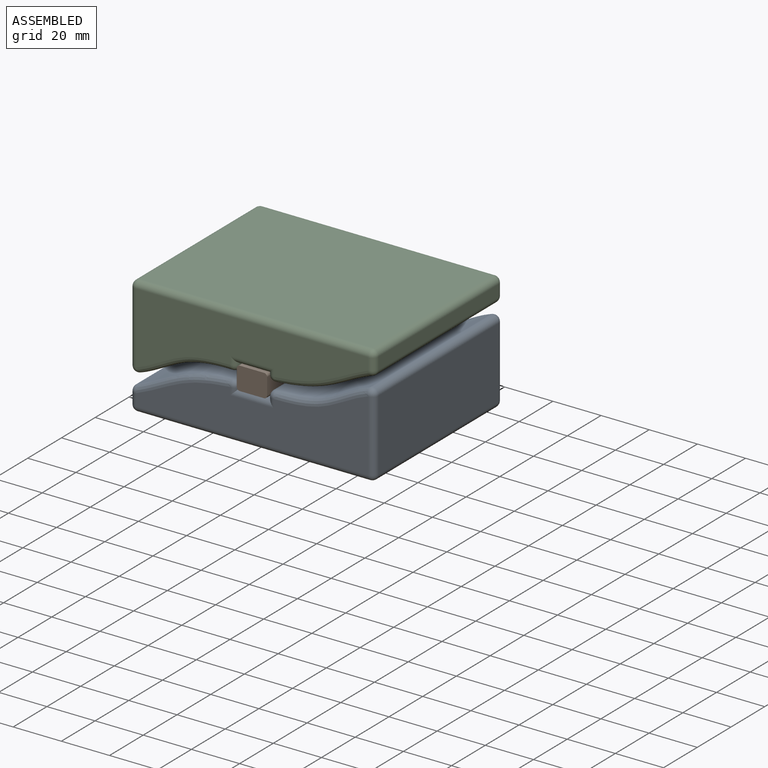
[diagram: assembled view]
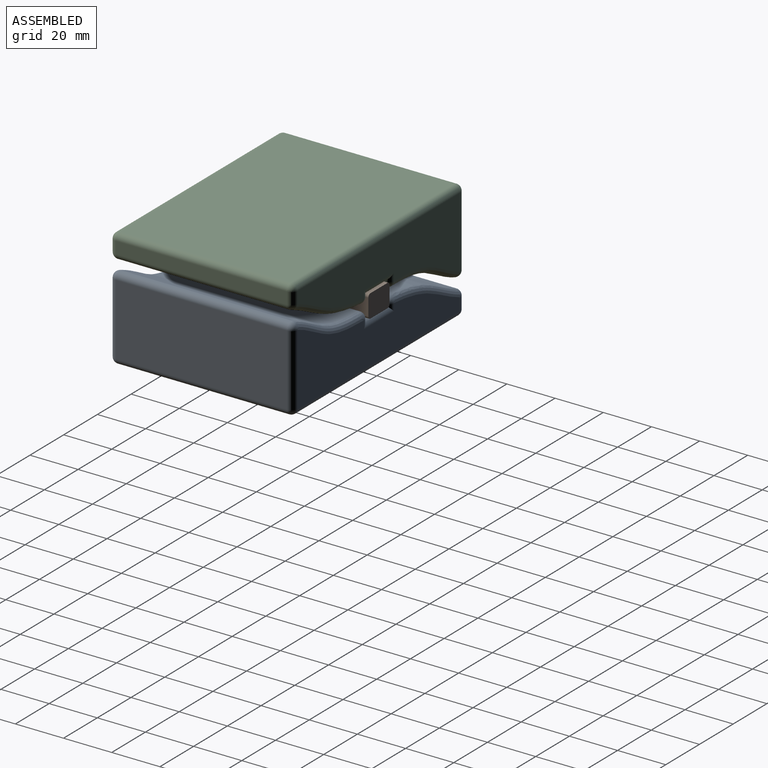
[diagram: assembled view, second angle]
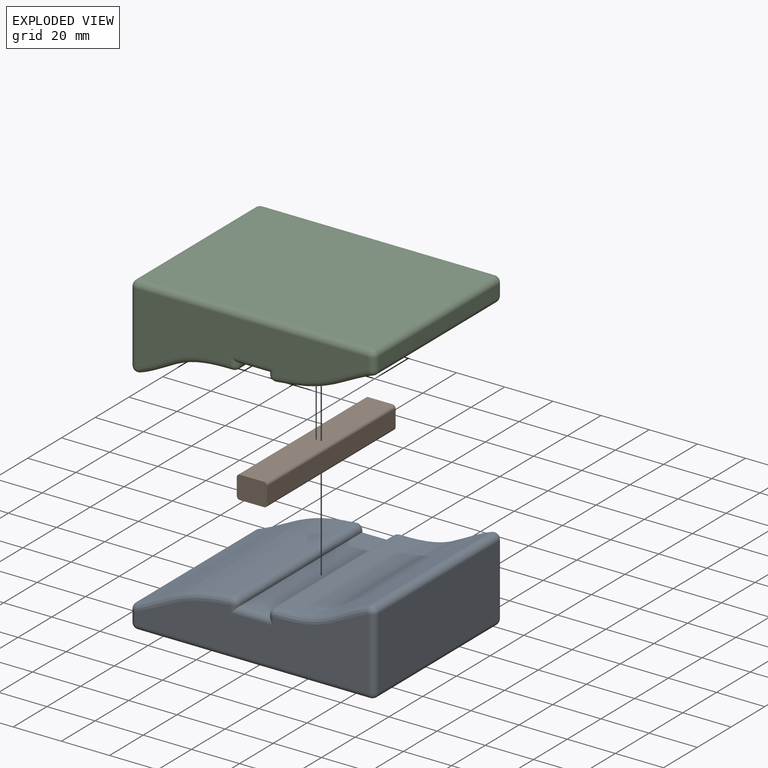
[diagram: exploded view]
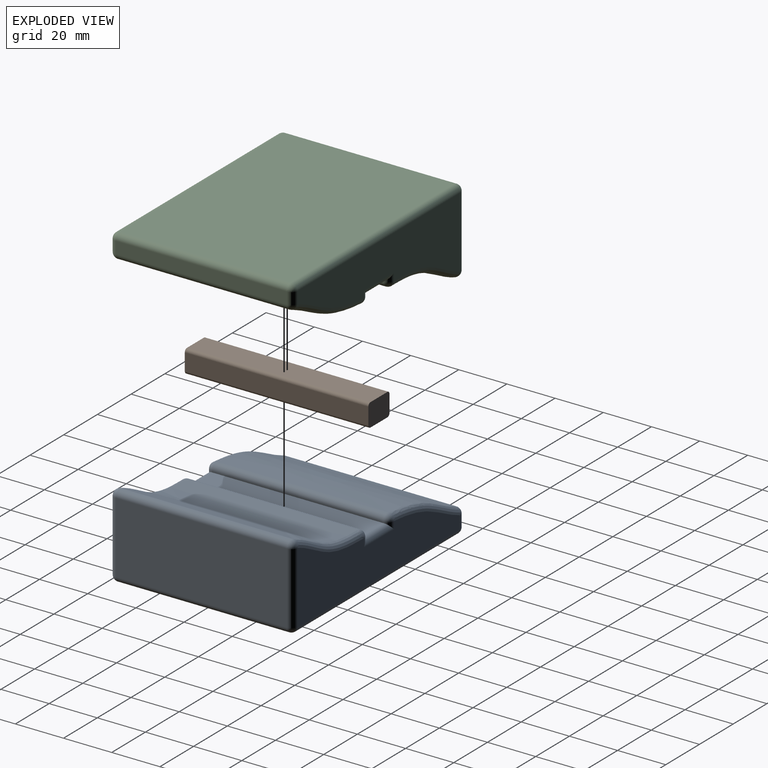
[diagram: exploded view, second angle]
ASSEMBLY  parts=3 mates=3
PART A: 54 faces, bbox 102.5x76.2x35 mm
  f0: plane 71.12x5.02mm, normal (-1,0,0), area 357.1mm2, adj f32,f37,f40,f43
  f1: plane 96.52x71.12mm, normal (0,0,-1), area 6864.5mm2, adj f29,f38,f39,f43
  f2: plane 71.12x29.68mm, normal (1,0,0), area 2110.7mm2, adj f19,f28,f29,f30
  f3: extruded ~71.12x38.59mm, area 2904.1mm2, adj f11,f18,f19,f20
  f4: plane 71.12x0.81mm, normal (-1,0,0), area 57.4mm2, adj f5,f10,f11,f12
  f5: plane 71.12x12.7mm, normal (0,0,1), area 903.2mm2, adj f4,f6,f13,f16
  f6: plane 71.12x0.48mm, normal (1,0,0), area 34.4mm2, adj f5,f17,f21,f22
  f7: extruded ~71.12x40.06mm, area 3022.9mm2, adj f22,f27,f31,f32
  f8: plane 96.54x29.68mm, normal (0,-1,0), area 1641.2mm2, adj f10,f13,f17,f18,f27,f28,f37,f38
  f9: plane 96.54x29.68mm, normal (0,1,0), area 1641.2mm2, adj f12,f16,f20,f21,f30,f31,f39,f40
  f10: cylinder r=2.54mm len=3.35mm, axis (0,0,1), area 6.9mm2, adj f4,f8,f13,f14
  f11: cylinder r=2.54mm len=71.12mm, axis (0,1,0), area 283.1mm2, adj f3,f4,f14,f15
  f12: cylinder r=2.54mm len=3.35mm, axis (0,0,-1), area 6.9mm2, adj f4,f9,f15,f16
  f13: cylinder r=2.54mm len=17.78mm, axis (1,0,0), area 58mm2, adj f5,f8,f10,f17
  f14: sphere r=2.54mm, area 10.1mm2, adj f10,f11,f18
  f15: sphere r=2.54mm, area 10.1mm2, adj f11,f12,f20
  f16: cylinder r=2.54mm len=17.78mm, axis (-1,0,0), area 58mm2, adj f5,f9,f12,f21
  f17: cylinder r=2.54mm len=3.02mm, axis (0,0,-1), area 5.6mm2, adj f6,f8,f13,f23
  f18: bspline ~42.51x14.24mm, area 164.1mm2, adj f3,f8,f14,f24
  f19: cylinder r=2.54mm len=71.12mm, axis (0,1,0), area 341.2mm2, adj f2,f3,f24,f25
  f20: bspline ~42.51x14.24mm, area 164.1mm2, adj f3,f9,f15,f25
  f21: cylinder r=2.54mm len=3.02mm, axis (0,0,1), area 5.6mm2, adj f6,f9,f16,f26
  f22: cylinder r=2.54mm len=71.12mm, axis (0,1,0), area 296.2mm2, adj f6,f7,f23,f26
  f23: sphere r=2.54mm, area 10.6mm2, adj f17,f22,f27
  f24: sphere r=2.54mm, area 12.4mm2, adj f18,f19,f28
  f25: sphere r=2.54mm, area 12.4mm2, adj f19,f20,f30
  f26: sphere r=2.54mm, area 10.6mm2, adj f21,f22,f31
  f27: bspline ~43.89x16.35mm, area 168.5mm2, adj f7,f8,f23,f33
  f28: cylinder r=2.54mm len=29.68mm, axis (0,0,-1), area 118.4mm2, adj f2,f8,f24,f34
  f29: cylinder r=2.54mm len=71.12mm, axis (0,-1,0), area 283.8mm2, adj f1,f2,f34,f35
  f30: cylinder r=2.54mm len=29.68mm, axis (0,0,1), area 118.4mm2, adj f2,f9,f25,f35
  f31: bspline ~42.38x15.85mm, area 168.6mm2, adj f7,f9,f26,f36
  f32: cylinder r=2.54mm len=71.12mm, axis (0,1,0), area 220.7mm2, adj f0,f7,f33,f36
  f33: sphere r=2.54mm, area 7.9mm2, adj f27,f32,f37
  f34: sphere r=2.54mm, area 10.1mm2, adj f28,f29,f38
  f35: sphere r=2.54mm, area 10.1mm2, adj f29,f30,f39
  f36: sphere r=2.54mm, area 7.9mm2, adj f31,f32,f40
  f37: cylinder r=2.54mm len=5.02mm, axis (0,0,1), area 20mm2, adj f0,f8,f33,f41
  f38: cylinder r=2.54mm len=96.52mm, axis (-1,0,0), area 385.1mm2, adj f1,f8,f34,f41
  f39: cylinder r=2.54mm len=96.52mm, axis (1,0,0), area 385.1mm2, adj f1,f9,f35,f42
  f40: cylinder r=2.54mm len=5.02mm, axis (0,0,-1), area 20mm2, adj f0,f9,f36,f42
  f41: sphere r=2.54mm, area 10.1mm2, adj f37,f38,f43
  f42: sphere r=2.54mm, area 10.1mm2, adj f39,f40,f43
  f43: cylinder r=2.54mm len=71.12mm, axis (0,1,0), area 283.8mm2, adj f0,f1,f41,f42
  f44: plane 71.12x5.02mm, normal (1,0,0), area 357.1mm2, adj f45,f51,f52,f53
  f45: plane 96.52x71.12mm, normal (0,0,1), area 6864.5mm2, adj f44,f46,f52,f53
  f46: plane 71.12x29.68mm, normal (-1,0,0), area 2110.7mm2, adj f45,f47,f52,f53
  f47: extruded ~71.12x39.37mm, area 2961.5mm2, adj f46,f48,f52,f53
  f48: plane 71.12x3.35mm, normal (1,0,0), area 238mm2, adj f47,f49,f52,f53
  f49: plane 71.12x17.78mm, normal (0,0,-1), area 1264.5mm2, adj f48,f50,f52,f53
  f50: plane 71.12x3.02mm, normal (-1,0,0), area 215mm2, adj f49,f51,f52,f53
  f51: extruded ~71.12x39.37mm, area 2972.1mm2, adj f44,f50,f52,f53
  f52: plane 96.52x29.68mm, normal (0,1,0), area 1641.2mm2, adj f44,f45,f46,f47,f48,f49,f50,f51
  f53: plane 96.52x29.68mm, normal (0,-1,0), area 1641.2mm2, adj f44,f45,f46,f47,f48,f49,f50,f51
PART B: 10 faces, bbox 12.6x76.2x9.5 mm
  f0: plane 76.2x10.03mm, normal (0,0,1), area 764.5mm2, adj f4,f5,f6,f9
  f1: plane 76.2x6.99mm, normal (-1,0,0), area 532.3mm2, adj f4,f5,f6,f7
  f2: plane 76.2x10.03mm, normal (0,0,-1), area 764.5mm2, adj f4,f5,f7,f8
  f3: plane 76.2x6.99mm, normal (1,0,0), area 532.3mm2, adj f4,f5,f8,f9
  f4: plane 12.57x9.53mm, normal (0,-1,0), area 118.4mm2, adj f0,f1,f2,f3,f6,f7,f8,f9
  f5: plane 12.57x9.53mm, normal (0,1,0), area 118.4mm2, adj f0,f1,f2,f3,f6,f7,f8,f9
  f6: cylinder r=1.27mm len=76.2mm, axis (0,-1,0), area 152mm2, adj f0,f1,f4,f5
  f7: cylinder r=1.27mm len=76.2mm, axis (0,1,0), area 152mm2, adj f1,f2,f4,f5
  f8: cylinder r=1.27mm len=76.2mm, axis (0,-1,0), area 152mm2, adj f2,f3,f4,f5
  f9: cylinder r=1.27mm len=76.2mm, axis (0,1,0), area 152mm2, adj f0,f3,f4,f5
PART C: 44 faces, bbox 102.5x76.2x35 mm
  f0: plane 71.12x12.7mm, normal (0,0,-1), area 903.2mm2, adj f1,f7,f33,f36
  f1: plane 71.12x0.48mm, normal (-1,0,0), area 34.4mm2, adj f0,f37,f40,f43
  f2: extruded ~71.12x40.06mm, area 3022.9mm2, adj f30,f38,f39,f43
  f3: plane 71.12x5.02mm, normal (1,0,0), area 357.1mm2, adj f20,f29,f30,f31
  f4: plane 96.52x71.12mm, normal (0,0,1), area 6864.5mm2, adj f11,f19,f20,f21
  f5: plane 71.12x29.68mm, normal (-1,0,0), area 2110.7mm2, adj f10,f11,f12,f13
  f6: extruded ~71.12x38.59mm, area 2904.1mm2, adj f13,f18,f22,f23
  f7: plane 71.12x0.81mm, normal (1,0,0), area 57.4mm2, adj f0,f23,f28,f32
  f8: plane 96.54x29.68mm, normal (0,-1,0), area 1641.2mm2, adj f10,f18,f19,f28,f29,f33,f37,f38
  f9: plane 96.54x29.68mm, normal (0,1,0), area 1641.2mm2, adj f12,f21,f22,f31,f32,f36,f39,f40
  f10: cylinder r=2.54mm len=29.68mm, axis (0,0,1), area 118.4mm2, adj f5,f8,f14,f15
  f11: cylinder r=2.54mm len=71.12mm, axis (0,1,0), area 283.8mm2, adj f4,f5,f15,f16
  f12: cylinder r=2.54mm len=29.68mm, axis (0,0,-1), area 118.4mm2, adj f5,f9,f16,f17
  f13: cylinder r=2.54mm len=71.12mm, axis (0,1,0), area 341.2mm2, adj f5,f6,f14,f17
  f14: sphere r=2.54mm, area 12.2mm2, adj f10,f13,f18
  f15: sphere r=2.54mm, area 10.1mm2, adj f10,f11,f19
  f16: sphere r=2.54mm, area 10.1mm2, adj f11,f12,f21
  f17: sphere r=2.54mm, area 12.2mm2, adj f12,f13,f22
  f18: bspline ~42.51x14.24mm, area 164.1mm2, adj f6,f8,f14,f24
  f19: cylinder r=2.54mm len=96.52mm, axis (1,0,0), area 385.1mm2, adj f4,f8,f15,f25
  f20: cylinder r=2.54mm len=71.12mm, axis (0,-1,0), area 283.8mm2, adj f3,f4,f25,f26
  f21: cylinder r=2.54mm len=96.52mm, axis (-1,0,0), area 385.1mm2, adj f4,f9,f16,f26
  f22: bspline ~42.51x14.24mm, area 164.1mm2, adj f6,f9,f17,f27
  f23: cylinder r=2.54mm len=71.12mm, axis (0,1,0), area 283.1mm2, adj f6,f7,f24,f27
  f24: sphere r=2.54mm, area 10.1mm2, adj f18,f23,f28
  f25: sphere r=2.54mm, area 10.1mm2, adj f19,f20,f29
  f26: sphere r=2.54mm, area 10.1mm2, adj f20,f21,f31
  f27: sphere r=2.54mm, area 10.1mm2, adj f22,f23,f32
  f28: cylinder r=2.54mm len=3.35mm, axis (0,0,-1), area 6.9mm2, adj f7,f8,f24,f33
  f29: cylinder r=2.54mm len=5.02mm, axis (0,0,-1), area 20mm2, adj f3,f8,f25,f34
  f30: cylinder r=2.54mm len=71.12mm, axis (0,1,0), area 220.7mm2, adj f2,f3,f34,f35
  f31: cylinder r=2.54mm len=5.02mm, axis (0,0,1), area 20mm2, adj f3,f9,f26,f35
  f32: cylinder r=2.54mm len=3.35mm, axis (0,0,1), area 6.9mm2, adj f7,f9,f27,f36
  f33: cylinder r=2.54mm len=17.78mm, axis (-1,0,0), area 58mm2, adj f0,f8,f28,f37
  f34: sphere r=2.54mm, area 7.9mm2, adj f29,f30,f38
  f35: sphere r=2.54mm, area 7.9mm2, adj f30,f31,f39
  f36: cylinder r=2.54mm len=17.78mm, axis (1,0,0), area 58mm2, adj f0,f9,f32,f40
  f37: cylinder r=2.54mm len=3.02mm, axis (0,0,1), area 5.6mm2, adj f1,f8,f33,f41
  f38: bspline ~43.89x16.35mm, area 168.5mm2, adj f2,f8,f34,f41
  f39: bspline ~42.38x15.85mm, area 168.6mm2, adj f2,f9,f35,f42
  f40: cylinder r=2.54mm len=3.02mm, axis (0,0,-1), area 5.6mm2, adj f1,f9,f36,f42
  f41: sphere r=2.54mm, area 10.6mm2, adj f37,f38,f43
  f42: sphere r=2.54mm, area 10.6mm2, adj f39,f40,f43
  f43: cylinder r=2.54mm len=71.12mm, axis (0,1,0), area 296.2mm2, adj f1,f2,f41,f42
PLACE A t=(0.82,39.5,28.46)mm
PLACE B t=(0.75,39.5,15.06)mm
PLACE C t=(0.82,39.5,1.67)mm
MATE fastened B.f0 <-> C.f0  axis (0,0,1) through (0.82,1.4,19.83)mm
MATE parallel B.f4 <-> A.f8  axis (0,-1,0) through (0.82,-36.7,15.06)mm
MATE fastened B.f2 <-> A.f5  axis (0,0,-1) through (0.82,1.4,10.3)mm
